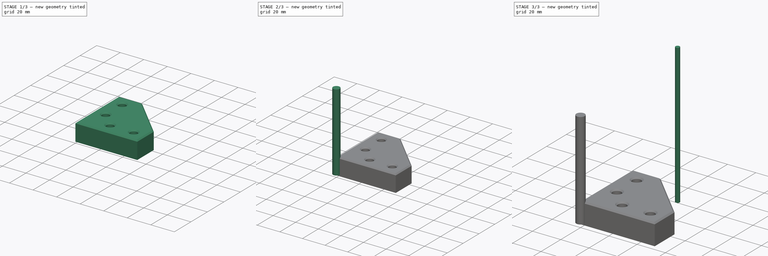
[diagram: build sequence overview — one tinted view per stage of 3, left to right]
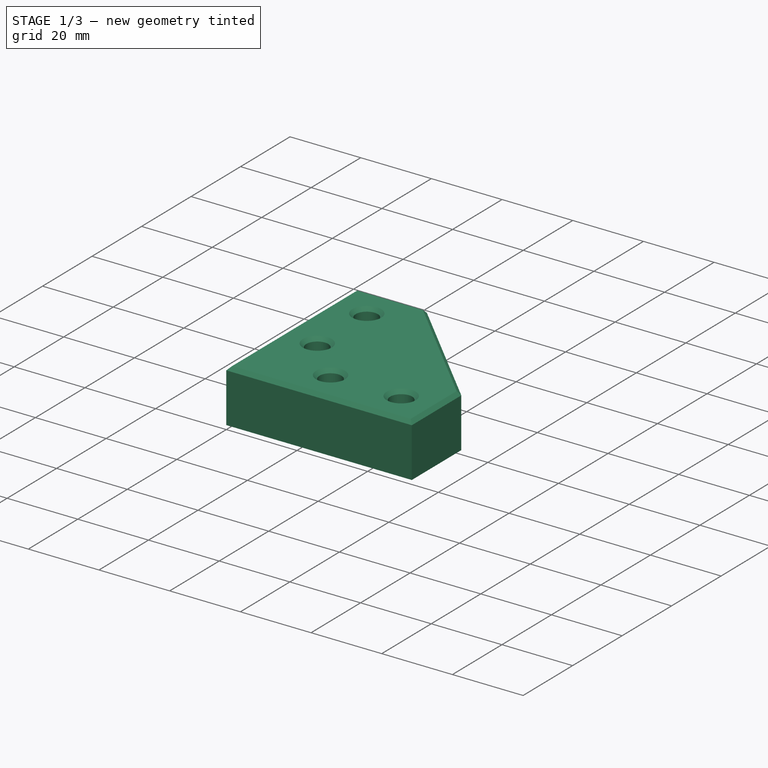
[diagram: stage 1 of 3 — iso view after this stage's code; geometry added in this stage tinted green]
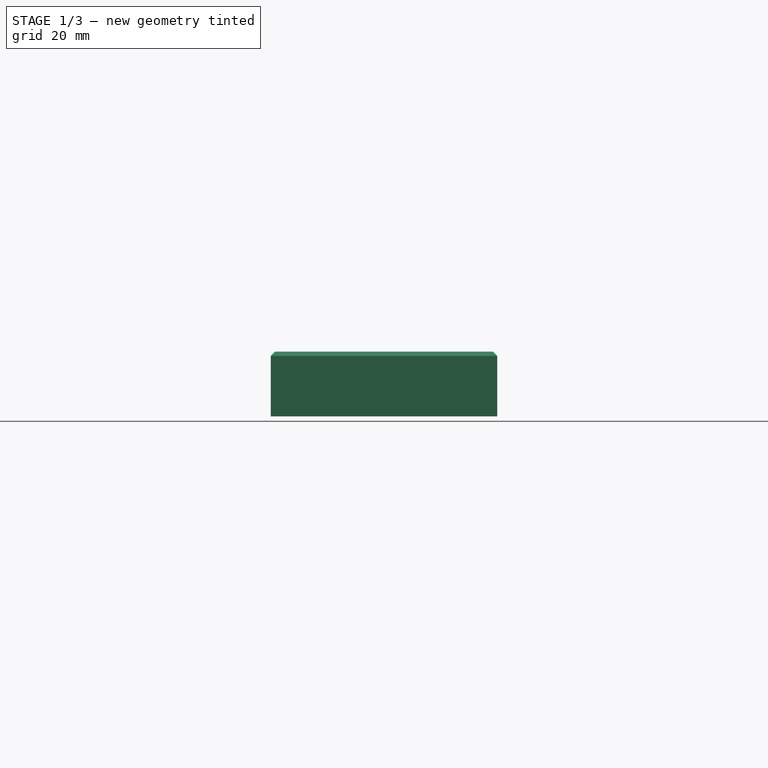
[diagram: stage 1 of 3 — front view after this stage's code; geometry added in this stage tinted green]
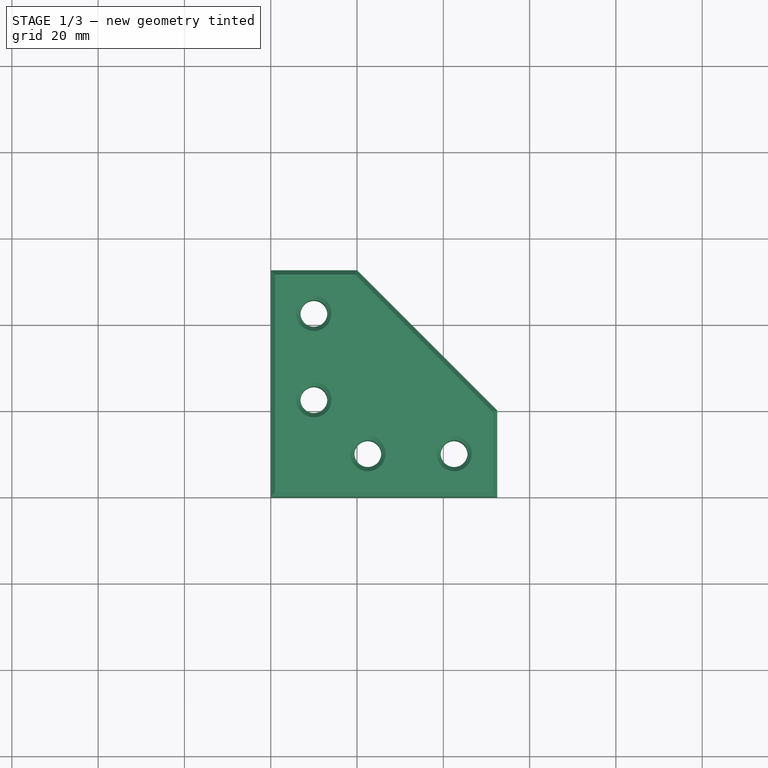
[diagram: stage 1 of 3 — top view after this stage's code; geometry added in this stage tinted green]
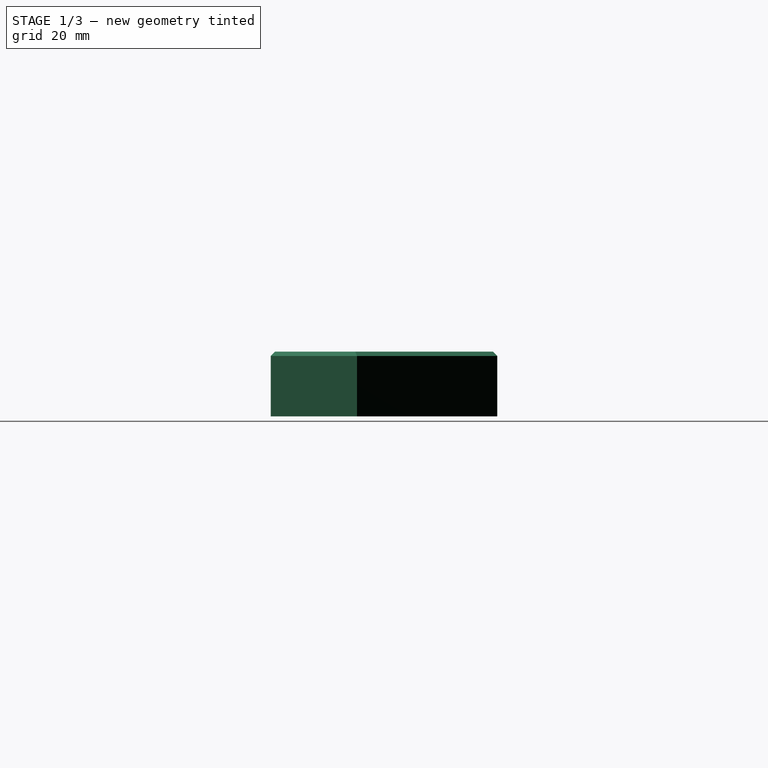
[diagram: stage 1 of 3 — right view after this stage's code; geometry added in this stage tinted green]
FCSTD DOCUMENT  (FreeCAD 1.2R45528 (Git))
Label: CNC test3
License: All rights reserved
LicenseURL: https://en.wikipedia.org/wiki/All_rights_reserved
objects: Path::FeaturePython×7, Part::FeaturePython×4, App::DocumentObjectGroup×3, Sketcher::SketchObject×2, PartDesign::Body×2, App::FeaturePython×2, App::Point×2, PartDesign::Pad×1, PartDesign::Chamfer×1, PartDesign::Revolution×1
note: 21 computed .brp shape members not serialized (recipe doc carries the construction recipe); baked Part::Feature solids carry a one-line shape summary decoded from their .brp

FEATURE [Sketcher::SketchObject] Sketch
  ArcFitTolerance = 1e-06
  AttachmentSupport = -> [XY_Plane]
  ExternalTypes = [0]
  FullyConstrained = true
  MakeInternals = false
  MapMode = 5
  sketch-geometry (17):
    g0: LineSegment StartX=0 StartY=52.5 StartZ=0 EndX=20 EndY=52.5 EndZ=0
    g1: LineSegment StartX=20 StartY=52.5 StartZ=0 EndX=52.5 EndY=20 EndZ=0
    g2: LineSegment StartX=52.5 StartY=20 StartZ=0 EndX=52.5 EndY=0 EndZ=0
    g3: LineSegment StartX=52.5 StartY=0 StartZ=0 EndX=0 EndY=0 EndZ=0
    g4: LineSegment StartX=0 StartY=0 StartZ=0 EndX=0 EndY=52.5 EndZ=0
    g5: Circle CenterX=10 CenterY=42.5 CenterZ=0 NormalX=0 NormalY=0 NormalZ=1 AngleXU=0 Radius=3.1
    g6: Circle [constr] CenterX=10 CenterY=32.5 CenterZ=0 NormalX=0 NormalY=0 NormalZ=1 AngleXU=0 Radius=3.1
    g7: Circle CenterX=10 CenterY=22.5 CenterZ=0 NormalX=0 NormalY=0 NormalZ=1 AngleXU=0 Radius=3.1
    g8: Circle CenterX=42.5 CenterY=10 CenterZ=0 NormalX=0 NormalY=0 NormalZ=1 AngleXU=0 Radius=3.1
    g9: Circle [constr] CenterX=32.5 CenterY=10 CenterZ=0 NormalX=0 NormalY=0 NormalZ=1 AngleXU=0 Radius=3.1
    g10: Circle CenterX=22.5 CenterY=10 CenterZ=0 NormalX=0 NormalY=0 NormalZ=1 AngleXU=0 Radius=3.1
    g11: LineSegment [constr] StartX=10 StartY=42.5 StartZ=0 EndX=10 EndY=32.5 EndZ=0
    g12: LineSegment [constr] StartX=10 StartY=32.5 StartZ=0 EndX=10 EndY=22.5 EndZ=0
    g13: LineSegment [constr] StartX=22.5 StartY=10 StartZ=0 EndX=32.5 EndY=10 EndZ=0
    g14: LineSegment [constr] StartX=32.5 StartY=10 StartZ=0 EndX=42.5 EndY=10 EndZ=0
    g15: GeomPoint [constr] X=10 Y=52.5 Z=0
    g16: GeomPoint [constr] X=52.5 Y=10 Z=0
  constraints (43):
    c: PointOnObject(g0,g-2)
    c: Horizontal(g0)
    c: Coincident(g0,g1)
    c: Coincident(g1,g2)
    c: PointOnObject(g2,g-1)
    c: Vertical(g2)
    c: Coincident(g2,g3)
    c: Coincident(g3,g-1)
    c: Coincident(g3,g4)
    c: Coincident(g4,g0)
    c: Equal(g0,g2)
    c: Equal(g3,g4)
    c: DistanceX(g0,g0) = 20
    c: Equal(g10,g9)
    c: Equal(g9,g8)
    c: Equal(g8,g7)
    c: Equal(g7,g6)
    c: Equal(g6,g5)
    c: Vertical(g5,g6)
    c: Vertical(g6,g7)
    c: Horizontal(g8,g9)
    c: Horizontal(g9,g10)
    c: Diameter(g9) = 6.2
    c: Coincident(g11,g5)
    c: Coincident(g11,g6)
    c: Coincident(g11,g12)
    c: Coincident(g12,g7)
    c: Coincident(g13,g10)
    c: Coincident(g13,g9)
    c: Coincident(g13,g14)
    c: Coincident(g14,g8)
    c: Equal(g14,g13)
    c: Equal(g13,g12)
    c: Equal(g12,g11)
    c: DistanceY(g12,g12) = 10
    c: Distance(g5,g0) = 10
    c: DistanceY(g-1,g7) = 22.5
    c: DistanceX(g-1,g10) = 22.5
    c: Symmetric(g0,g0,g15)
    c: Vertical(g15,g5)
    c: Symmetric(g2,g2,g16)
    c: Horizontal(g8,g16)
    c: DistanceX(g3,g3) = 52.5
FEATURE [PartDesign::Pad] Pad
  Direction = (0,0,1)
  Length = 15
  Length2 = 10
  Profile = -> Sketch
  ReferenceAxis = -> Sketch [N_Axis]
  Refine = true
  SideType = 0
  Suppressed = false
  Type = 0
  Type2 = 0
FEATURE [PartDesign::Chamfer] Chamfer
  Angle = 45
  Base = -> Pad [Face11]
  BaseFeature = -> Pad
  ChamferType = 0
  FlipDirection = false
  Refine = true
  Size = 1
  Size2 = 1
  SupportTransform = false
  Suppressed = false
  UseAllEdges = false
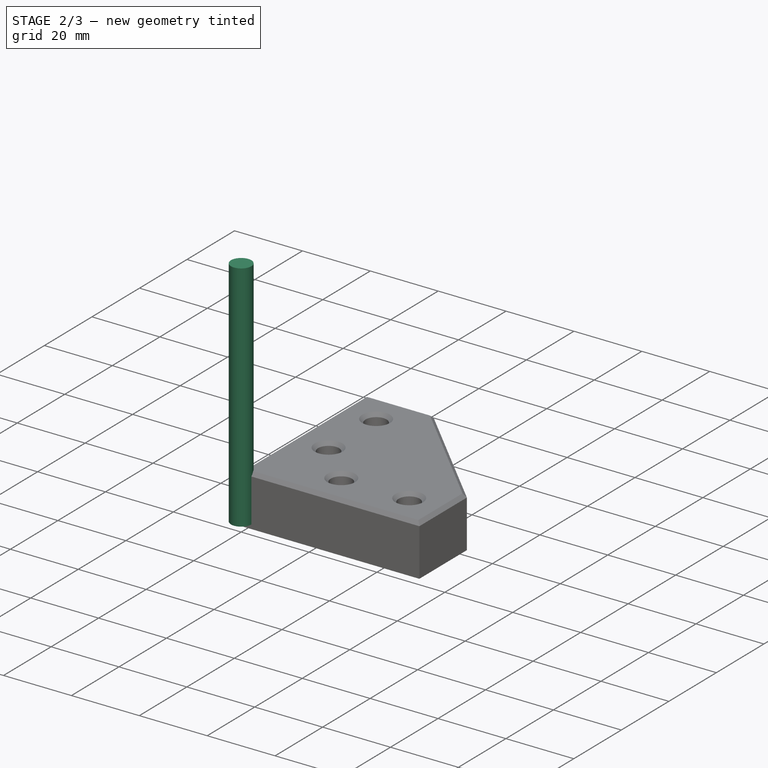
[diagram: stage 2 of 3 — iso view after this stage's code; geometry added in this stage tinted green]
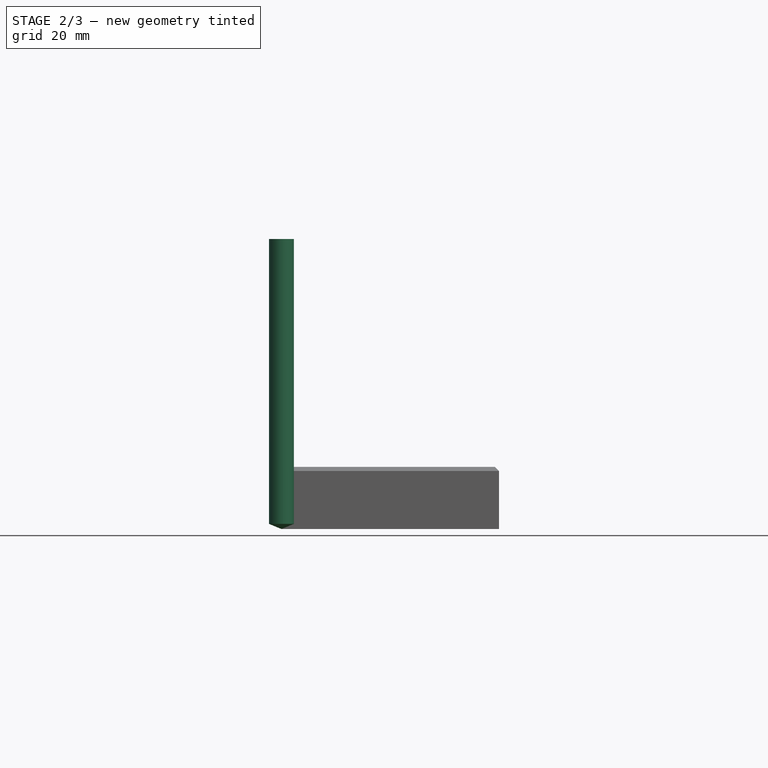
[diagram: stage 2 of 3 — front view after this stage's code; geometry added in this stage tinted green]
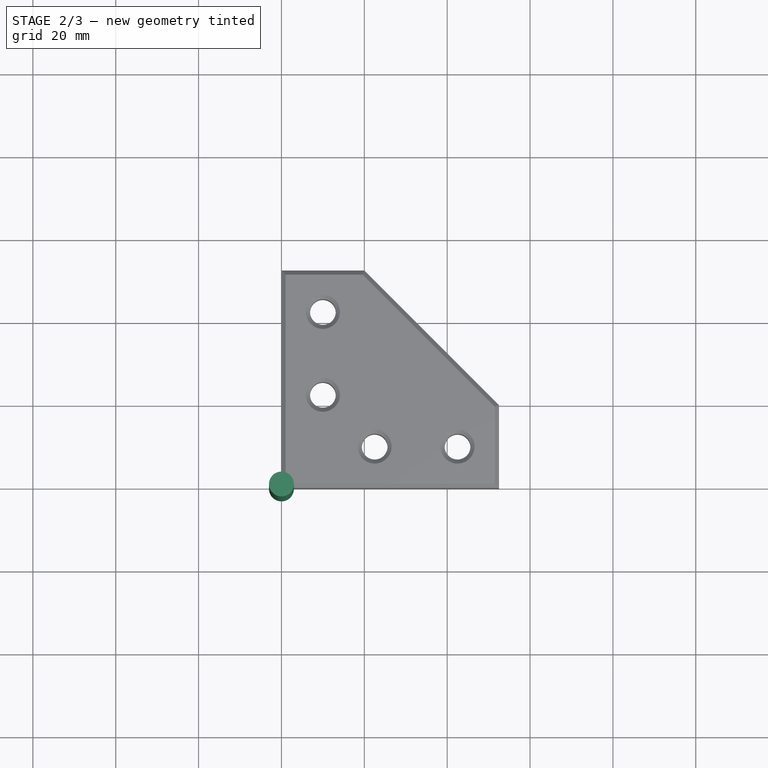
[diagram: stage 2 of 3 — top view after this stage's code; geometry added in this stage tinted green]
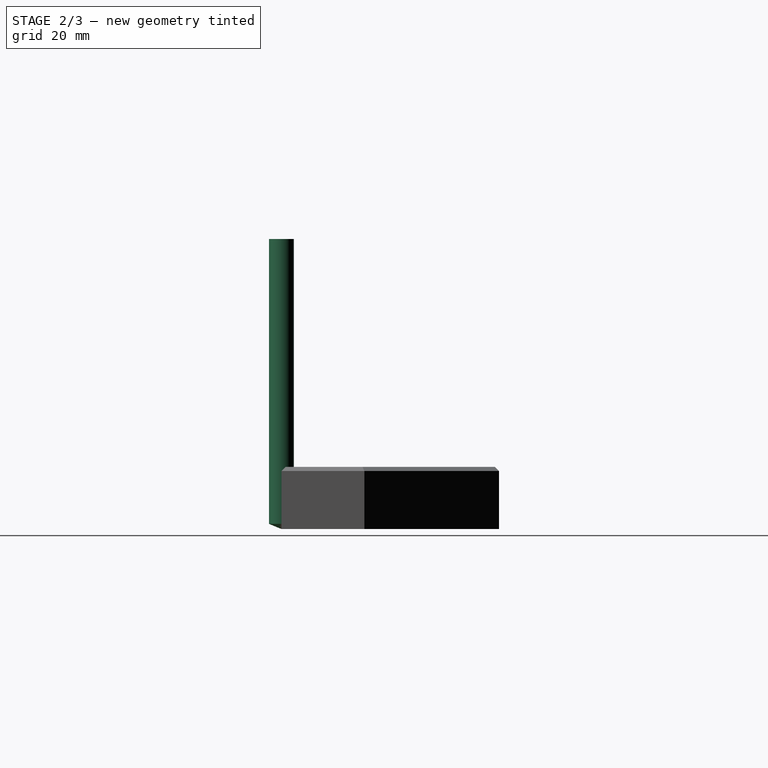
[diagram: stage 2 of 3 — right view after this stage's code; geometry added in this stage tinted green]
FEATURE [Path::FeaturePython] TC__3mm_Drill  label="TC: 3mm_Drill"  # Path/CAM operation (typed FeaturePython)
  HorizFeed = 5.83333
  HorizRapid = 12.5
  LeadInFeed = 5.83333
  LeadOutFeed = 5.83333
  RampFeed = 0
  SpindleDir = 0
  SpindleSpeed = 12000
  Tool = -> ToolBit001
  ToolNumber = 10
  VertFeed = 2.5
  VertRapid = 4.16667
  expr: HorizRapid = SetupSheet.HorizRapid
  expr: LeadInFeed = HorizFeed
  expr: LeadOutFeed = HorizFeed
  expr: VertRapid = SetupSheet.VertRapid
FEATURE [Path::FeaturePython] MillFace  # Path/CAM operation (typed FeaturePython)
  Active = true
  AreaParams:
    Tolerance = 1e-07
    FitArcs = True
    Simplify = False
    CleanDistance = 0.0
    Accuracy = 0.01
    Unit = 1.0
    MinArcPoints = 4
    MaxArcPoints = 100
    ClipperScale = 10000000.0
    Fill = 0
    Coplanar = 0
    Reorient = True
    Outline = False
    Explode = False
    OpenMode = 0
    Deflection = 0.01
    SubjectFill = 0
    ClipFill = 0
    Offset = 0.0
    ExtraPass = 0
    Stepover = 0.0
    LastStepover = 0.0
    JoinType = 0
    EndType = 0
    MiterLimit = 2.0
    RoundPrecision = 0.0
    PocketMode = 2
    ToolRadius = 1.5
    PocketExtraOffset = 0.0
    PocketStepover = 1.5
    PocketLastStepover = 0.0
    FromCenter = True
    Angle = 45.0
    AngleShift = 0.0
    Shift = 0.0
    Thicken = False
    SectionCount = -1
    Stepdown = 1.0
    SectionOffset = 0.0
    SectionTolerance = 1e-06
    SectionMode = 2
    Project = False
  Base = -> [Clone]
  BoundaryShape = 0
  ClearEdges = false
  ClearanceHeight = 20
  ClearingPattern = 1
  CoolantMode = 0
  CutMode = 0
  CycleTime = 00:05:37
  ExcludeRaisedAreas = false
  ExtraOffset = 0
  FinalDepth = 15
  FinishDepth = 0
  KeepToolDown = false
  MinTravel = true
  OpFinalDepth = 15
  OpStartDepth = 15.5
  OpStockZMax = 15
  OpStockZMin = 0
  OpToolDiameter = 3
  PathParams = {'orientation': 1, 'feedrate': 5.833333333333333, 'feedrate_v': 2.5, 'verbose': True, 'resume_height': 18.0, 'retraction': 20.0, 'return_end': True, 'preamble': False}
  PocketLastStepOver = 0
  SafeHeight = 18
  SplitArcs = false
  StartAt = 0
  StartDepth = 15.5
  StartPoint = (0,0,0)
  StepDown = 0.5
  StepOver = 50
  ToolController = -> TC__3mm_Drill
  UseRestMachining = false
  UseStartPoint = false
  ZigZagAngle = 45
  expr: ClearanceHeight = OpStockZMax + SetupSheet.ClearanceHeightOffset
  expr: FinalDepth = OpFinalDepth
  expr: SafeHeight = OpStockZMax + SetupSheet.SafeHeightOffset
  expr: StartDepth = OpStartDepth
  expr: StepDown = 0.5
FEATURE [Path::FeaturePython] Profile  # Path/CAM operation (typed FeaturePython)
  Active = true
  AreaParams:
    Tolerance = 1e-07
    FitArcs = True
    Simplify = False
    CleanDistance = 0.0
    Accuracy = 0.01
    Unit = 1.0
    MinArcPoints = 4
    MaxArcPoints = 100
    ClipperScale = 10000000.0
    Fill = 0
    Coplanar = 0
    Reorient = True
    Outline = False
    Explode = False
    OpenMode = 0
    Deflection = 0.01
    SubjectFill = 0
    ClipFill = 0
    Offset = 1.5
    ExtraPass = 0
    Stepover = -0.0
    LastStepover = 0.0
    JoinType = 0
    EndType = 0
    MiterLimit = 2.0
    RoundPrecision = 0.0
    PocketMode = 0
    ToolRadius = 1.0
    PocketExtraOffset = 0.0
    PocketStepover = 0.0
    PocketLastStepover = 0.0
    FromCenter = False
    Angle = 45.0
    AngleShift = 0.0
    Shift = 0.0
    Thicken = False
    SectionCount = -1
    Stepdown = 1.0
    SectionOffset = 0.0
    SectionTolerance = 1e-06
    SectionMode = 2
    Project = False
  Base = -> [Clone]
  ClearanceHeight = 20
  CoolantMode = 0
  CycleTime = 00:17:32
  Direction = 0
  FinalDepth = 0
  HandleMultipleFeatures = 0
  JoinType = 0
  MiterLimit = 0.1
  NumPasses = 1
  OffsetExtra = 0
  OpFinalDepth = 0
  OpStartDepth = 15
  OpStockZMax = 15
  OpStockZMin = 0
  OpToolDiameter = 3
  PathParams = {'orientation': 1, 'feedrate': 5.833333333333333, 'feedrate_v': 2.5, 'verbose': True, 'resume_height': 18.0, 'retraction': 20.0, 'return_end': True, 'preamble': False}
  SafeHeight = 18
  Side = 0
  SplitArcs = false
  StartDepth = 15
  StartPoint = (0,0,0)
  StepDown = 0.5
  Stepover = 0
  ToolController = -> TC__3mm_Drill
  UseComp = true
  UseLongestEdge = false
  UseStartPoint = false
  processCircles = false
  processHoles = false
  processPerimeter = true
  expr: ClearanceHeight = OpStockZMax + SetupSheet.ClearanceHeightOffset
  expr: FinalDepth = OpFinalDepth
  expr: SafeHeight = OpStockZMax + SetupSheet.SafeHeightOffset
  expr: StartDepth = OpStartDepth
  expr: StepDown = 0.5
FEATURE [App::Point] Origin001  label="Origin"
  Role = Origin
FEATURE [Path::FeaturePython] Helix  label="Helix001"  # Path/CAM operation (typed FeaturePython)
  Active = true
  Base = -> [Clone]
  ClearanceHeight = 20
  CoolantMode = 0
  CutMode = 0
  CycleTime = 00:16:24
  Direction = 0
  FinalDepth = 0
  OffsetExtra = 0
  OpFinalDepth = 0
  OpStartDepth = 15
  OpStockZMax = 15
  OpStockZMin = 0
  OpToolDiameter = 3
  SafeHeight = 18
  StartDepth = 15
  StartRadius = 0
  StartSide = 0
  StepDown = 0.5
  StepOver = 50
  ToolController = -> TC__3mm_Drill
  expr: ClearanceHeight = OpStockZMax + SetupSheet.ClearanceHeightOffset
  expr: FinalDepth = OpFinalDepth
  expr: SafeHeight = OpStockZMax + SetupSheet.SafeHeightOffset
  expr: StartDepth = OpStartDepth
  expr: StepDown = 0.5
FEATURE [App::FeaturePython] PropertyBag  label="Attributes"  # WARN: FeaturePython — macro-defined, semantics opaque (R4)
  CustomPropertyGroups = 0
  CuttingEdgeAngle = 135
  CuttingEdgeHeight = 67
  Diameter = 6
  Flutes = 2
  Length = 70
  ShankDiameter = 6
  TipDiameter = 0.01
FEATURE [Sketcher::SketchObject] Sketch001
  ArcFitTolerance = 0
  AttachmentSupport = -> [XZ_Plane001]
  ExternalTypes = [0]
  FullyConstrained = true
  MakeInternals = false
  MapMode = 5
  Placement = pos=(0,0,0) rot=(1,0,0;1.5708rad)
  expr: Constraints[17] = <<Attributes>>.Diameter
  expr: Constraints[18] = <<Attributes>>.CuttingEdgeAngle
  expr: Constraints[19] = <<Attributes>>.Length
  expr: Constraints[22] = <<Attributes>>.ShankDiameter
  expr: Constraints[26] = <<Attributes>>.CuttingEdgeHeight
  expr: Constraints[28] = <<Attributes>>.TipDiameter + 0.05 um
  sketch-geometry (12):
    g0: LineSegment StartX=0 StartY=70 StartZ=0 EndX=0 EndY=0 EndZ=0
    g1: LineSegment StartX=0 StartY=0 StartZ=0 EndX=0.005025 EndY=0 EndZ=0
    g2: LineSegment StartX=0.005025 StartY=0 StartZ=0 EndX=3 EndY=1.24056 EndZ=0
    g3: LineSegment StartX=3 StartY=68.2406 StartZ=0 EndX=3 EndY=68.2306 EndZ=0
    g4: LineSegment StartX=3 StartY=68.2306 StartZ=0 EndX=3 EndY=70 EndZ=0
    g5: LineSegment StartX=3 StartY=70 StartZ=0 EndX=0 EndY=70 EndZ=0
    g6: LineSegment [constr] StartX=-3 StartY=1.24056 StartZ=0 EndX=3 EndY=1.24056 EndZ=0
    g7: LineSegment [constr] StartX=3 StartY=1.24056 StartZ=0 EndX=0.005025 EndY=0 EndZ=0
    g8: LineSegment [constr] StartX=0.005025 StartY=0 StartZ=0 EndX=-0.005025 EndY=0 EndZ=0
    g9: LineSegment [constr] StartX=-0.005025 StartY=0 StartZ=0 EndX=-3 EndY=1.24056 EndZ=0
    g10: LineSegment [constr] StartX=3 StartY=70 StartZ=0 EndX=-3 EndY=70 EndZ=0
    g11: LineSegment StartX=3 StartY=1.24056 StartZ=0 EndX=3 EndY=68.2406 EndZ=0
  constraints (30):
    c: Vertical(g0)
    c: Coincident(g0,g1)
    c: Horizontal(g1)
    c: Coincident(g1,g2)
    c: Coincident(g3,g4)
    c: Vertical(g4)
    c: Coincident(g4,g5)
    c: Horizontal(g5)
    c: Coincident(g5,g0)
    c: Coincident(g6,g7)
    c: Coincident(g7,g8)
    c: Coincident(g8,g9)
    c: Coincident(g9,g6)
    c: Symmetric(g8,g7,g0)
    c: Coincident(g1,g7)
    c: Coincident(g2,g6)
    c: Symmetric(g2,g6,g0)
    c: DistanceX(g6,g6) = 6
    c: Angle(g2,g9) = 2.35619
    c: DistanceY(g0,g0) = 70
    c: Coincident(g10,g4)
    c: Symmetric(g10,g4,g-2)
    c: DistanceX(g10,g10) = 6
    c: Vertical(g11)
    c: Coincident(g3,g11)
    c: Coincident(g11,g2)
    c: DistanceY(g11,g11) = 67
    c: Coincident(g-1,g0)
    c: DistanceX(g8,g8) = 0.01005
    c: DistanceY(g3,g3) = 0.01
FEATURE [PartDesign::Revolution] Revolution
  AllowMultiFace = false
  Angle = 360
  Angle2 = 60
  Axis = (0,2e-16,1)
  Base = (0,0,0)
  FuseOrder = 0
  Placement = pos=(0,0,0) rot=(1,0,0;1.5708rad)
  Profile = -> Sketch001
  ReferenceAxis = -> Sketch001 [V_Axis]
  Reversed = true
  Suppressed = false
  Type = 0
FEATURE [App::Point] Origin002
  Role = Origin
FEATURE [PartDesign::Body] Body001  label="VBit"
  AllowCompound = false
  Group = -> [Sketch001,Revolution,PropertyBag]
  Origin = -> Origin003
  Tip = -> Revolution
FEATURE [Part::FeaturePython] _6mm_Vbit__no_real_Vbit_  label="6mm Vbit (no real Vbit)"  # WARN: FeaturePython — macro-defined, semantics opaque (R4)
  BitBody = -> Body001
  Chipload = 0
  CuttingEdgeAngle = 135
  CuttingEdgeHeight = 67
  Diameter = 6
  Flutes = 2
  Length = 70
  Material = 0
  ShankDiameter = 6
  ShapeID = v-bit
  ShapeType = 14
  SpindleDirection = 0
  TipDiameter = 0.01
  ToolBitID = e4e186b6-1f3f-45a0-b9d5-d39f341de7e1
  Units = 0
FEATURE [Path::FeaturePython] TC__6mm_Vbit__no_real_Vbit_  label="TC: 6mm Vbit (no real Vbit)"  # Path/CAM operation (typed FeaturePython)
  HorizFeed = 0.833333
  HorizRapid = 12.5
  LeadInFeed = 0.833333
  LeadOutFeed = 0.833333
  RampFeed = 0.833333
  SpindleDir = 0
  SpindleSpeed = 12000
  Tool = -> _6mm_Vbit__no_real_Vbit_
  ToolNumber = 14
  VertFeed = 0.333333
  VertRapid = 4.16667
  expr: HorizRapid = SetupSheet.HorizRapid
  expr: LeadInFeed = HorizFeed
  expr: LeadOutFeed = HorizFeed
  expr: RampFeed = HorizFeed
  expr: VertRapid = SetupSheet.VertRapid
FEATURE [App::DocumentObjectGroup] Tools
  Group = -> [TC__3mm_Drill,TC__6mm_Vbit__no_real_Vbit_]
FEATURE [Path::FeaturePython] Deburr  # Path/CAM operation (typed FeaturePython)
  Active = true
  Base = -> [Clone]
  ClearanceHeight = 20
  CoolantMode = 0
  CycleTime = 00:05:15
  Direction = 0
  EntryPoint = 0
  ExtraDepth = 0.5
  Join = 0
  OpStockZMax = 15
  OpStockZMin = 0
  OpToolDiameter = 6
  SafeHeight = 18
  Side = 1
  StartDepth = 15
  StepDown = 0
  ToolController = -> TC__6mm_Vbit__no_real_Vbit_
  Width = 1
  expr: ClearanceHeight = OpStockZMax + SetupSheet.ClearanceHeightOffset
  expr: SafeHeight = OpStockZMax + SetupSheet.SafeHeightOffset
  expr: StepDown = 0 mm
FEATURE [App::DocumentObjectGroup] Operations
  Group = -> [MillFace,Helix,Deburr,Profile]
FEATURE [Part::FeaturePython] Clone001  label="Stock-Body"  # Draft clone (typed FeaturePython)
  AttacherType = Attacher::AttachEngine3D
  ForceCompound = false
  Fuse = false
  Objects = -> [Body]
  PathResource = Stock
  Scale = (1,1,1)
  StockType = Unknown
FEATURE [Path::FeaturePython] Job  # Path/CAM operation (typed FeaturePython)
  CycleTime = 00:44:48
  Fixtures = G54
  GeometryTolerance = 0.01
  JobType = 0
  Model = -> Model
  Operations = -> Operations
  OrderOutputBy = 2
  PostProcessor = 20
  SetupSheet = -> SetupSheet
  SplitOutput = true
  Stock = -> Clone001
  Tools = -> Tools
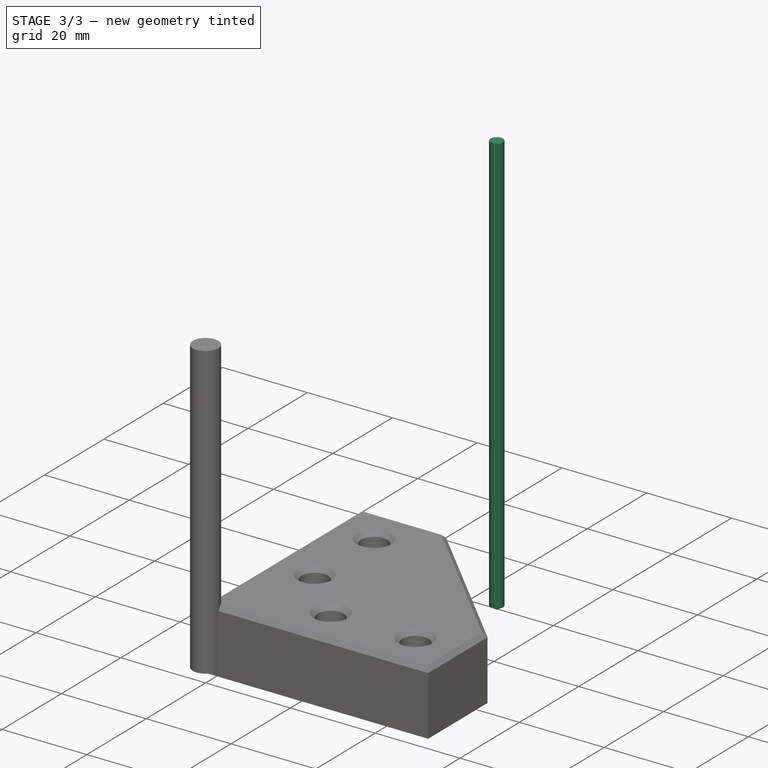
[diagram: stage 3 of 3 — iso view after this stage's code; geometry added in this stage tinted green]
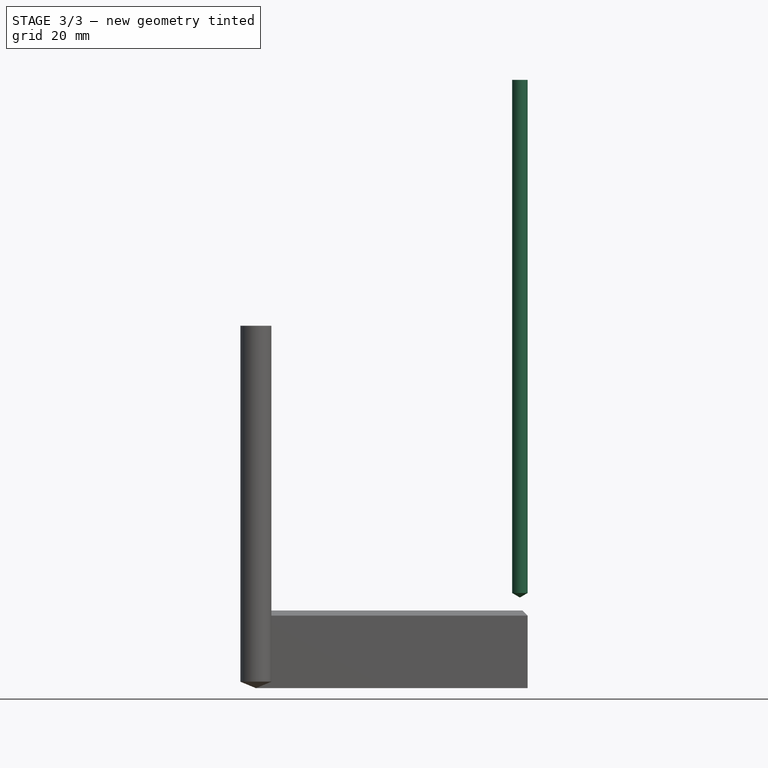
[diagram: stage 3 of 3 — front view after this stage's code; geometry added in this stage tinted green]
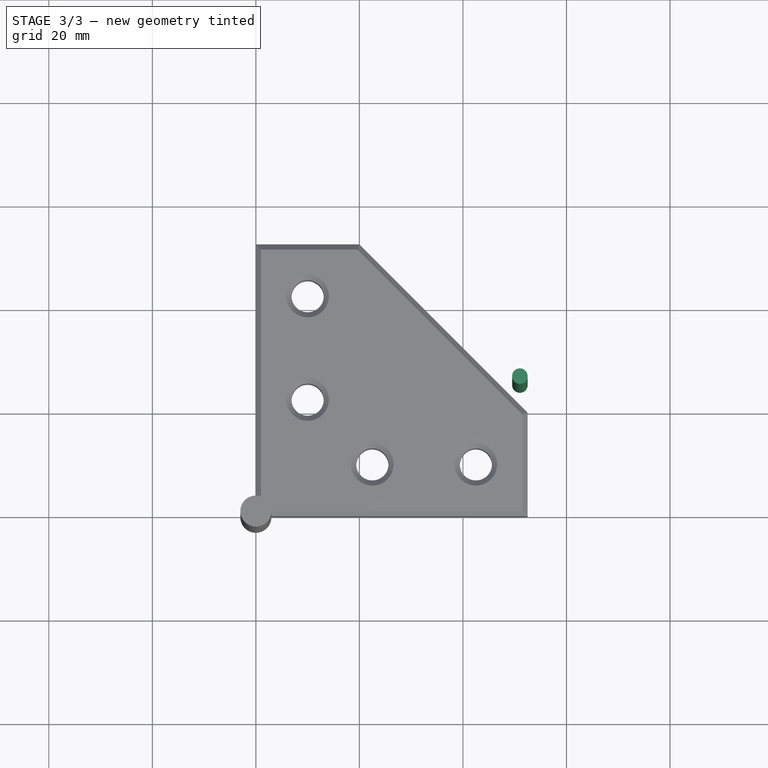
[diagram: stage 3 of 3 — top view after this stage's code; geometry added in this stage tinted green]
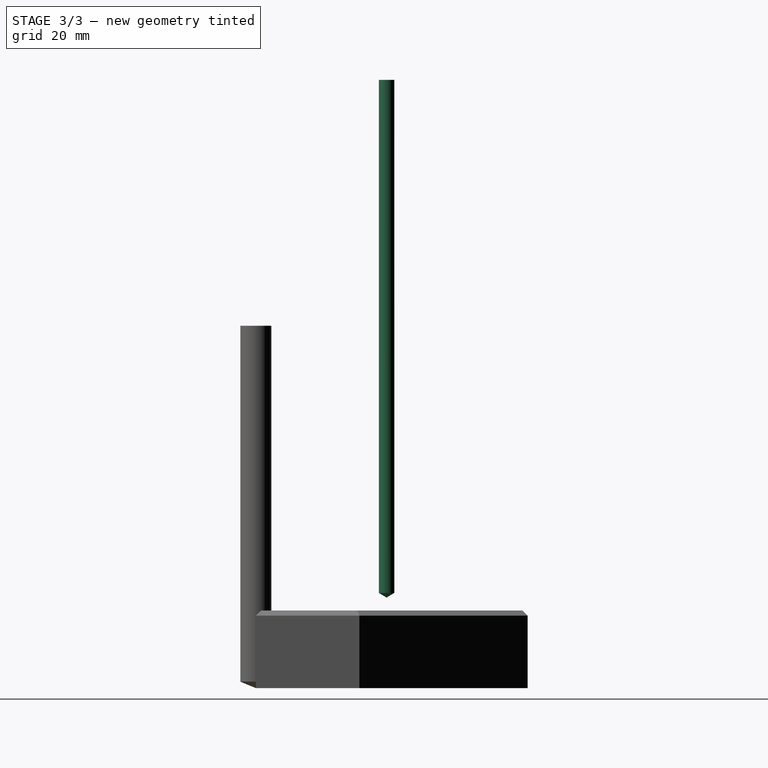
[diagram: stage 3 of 3 — right view after this stage's code; geometry added in this stage tinted green]
FEATURE [PartDesign::Body] Body
  AllowCompound = false
  Group = -> [Sketch,Pad,Chamfer]
  Origin = -> Origin
  Tip = -> Chamfer
FEATURE [App::FeaturePython] SetupSheet  # Path/CAM operation (typed FeaturePython)
  ClearanceHeightExpression = OpStockZMax+SetupSheet.ClearanceHeightOffset
  ClearanceHeightOffset = 5
  CoolantMode = 0
  CoolantModes = None | Flood | Mist
  FinalDepthExpression = OpFinalDepth
  HorizRapid = 12.5
  SafeHeightExpression = OpStockZMax+SetupSheet.SafeHeightOffset
  SafeHeightOffset = 3
  StartDepthExpression = OpStartDepth
  StepDownExpression = 0.5
  VertRapid = 4.16667
FEATURE [Part::FeaturePython] Clone  label="Model-Body"  # Draft clone (typed FeaturePython)
  AttacherType = Attacher::AttachEngine3D
  ForceCompound = false
  Fuse = false
  Objects = -> [Body]
  PathResource = Model
  Scale = (1,1,1)
FEATURE [App::DocumentObjectGroup] Model
  Group = -> [Clone]
FEATURE [Part::FeaturePython] ToolBit001  label="3mm_Drill"  # WARN: FeaturePython — macro-defined, semantics opaque (R4)
  BitPropertyNames = Chipload | Diameter | Flutes | Length | Material | TipAngle
  Chipload = 0
  Diameter = 3
  Flutes = 0
  Length = 100
  Material = 0
  Placement = pos=(51.0001,25.2499,17.5) rot=(0,0,1;0rad)
  ShapeID = drill
  ShapeType = 5
  SpindleDirection = 0
  TipAngle = 119
  ToolBitID = 3mm_Drill
  Units = 0
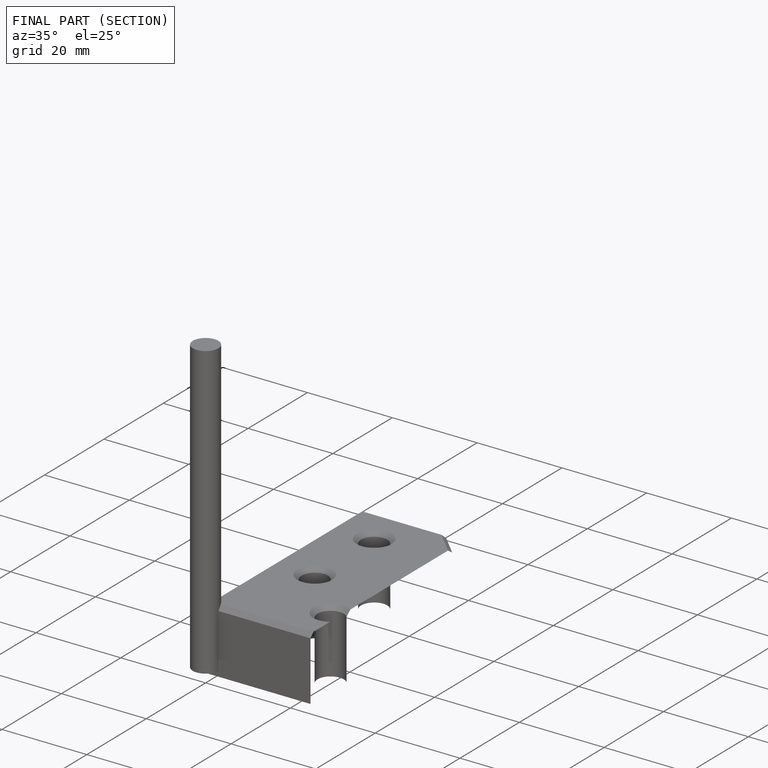
[diagram: finished part — half-section view (interior)]
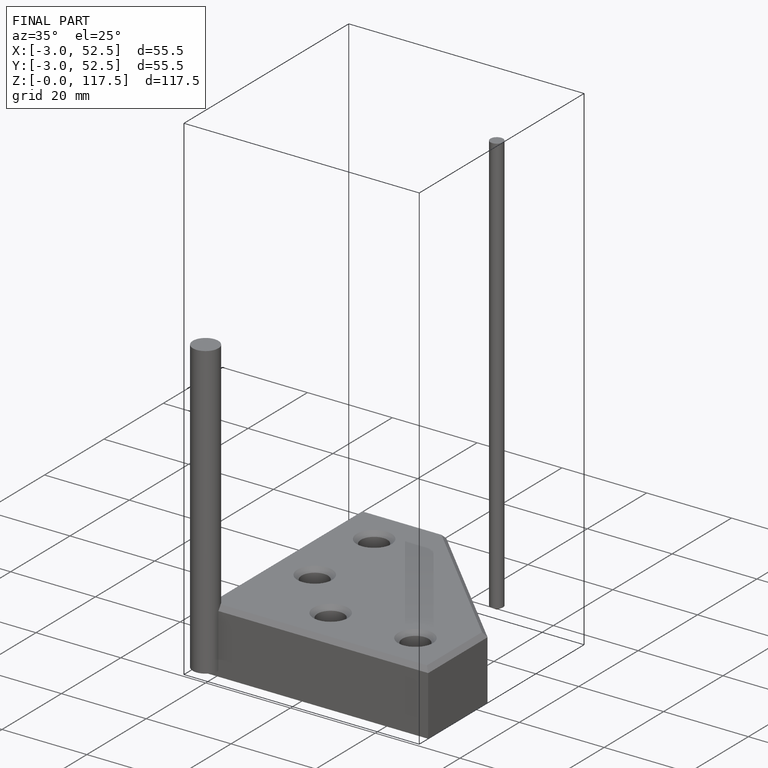
[diagram: finished part — iso view with bounding-box wireframe]
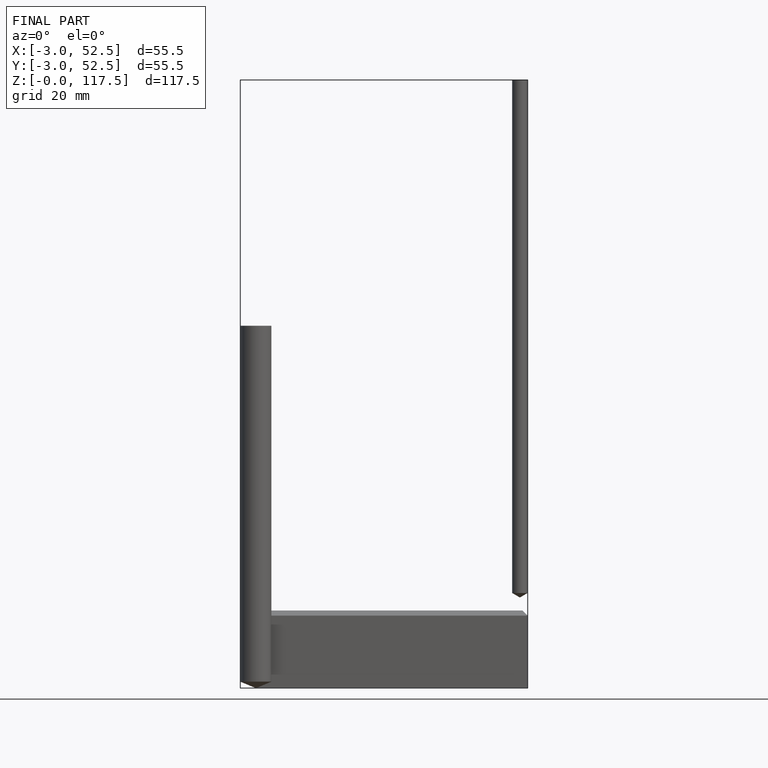
[diagram: finished part — front view with bounding-box wireframe]
